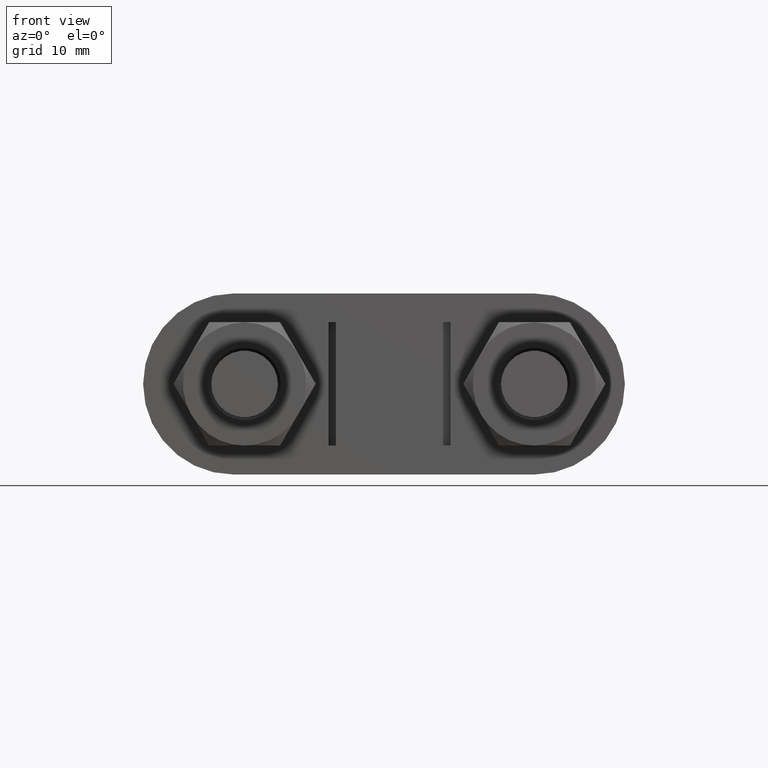
[diagram: clean part render]
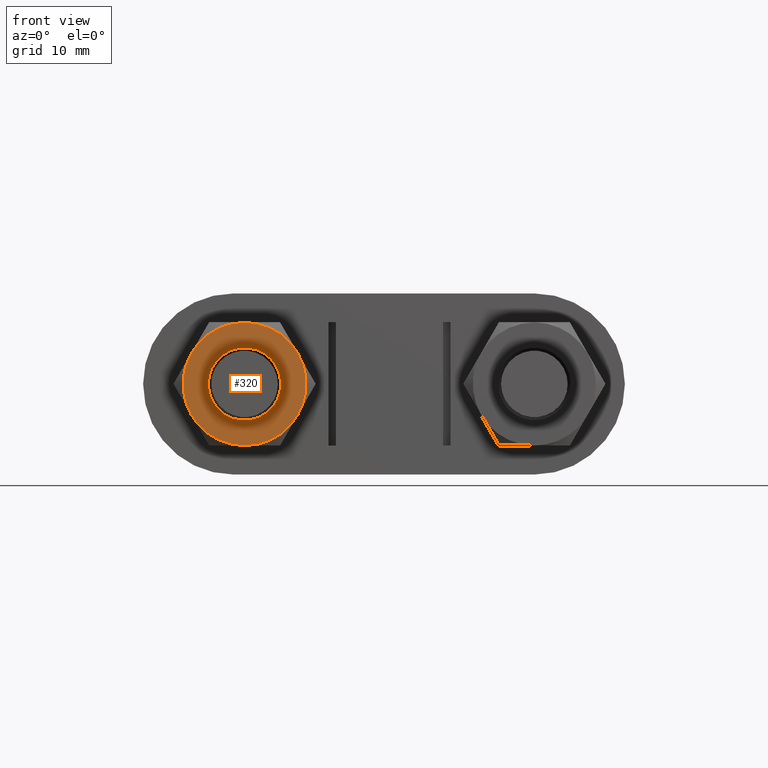
[diagram: same view with one face highlighted and labeled with its STEP entity id]
A machine part, front view. The second image highlights one B-rep face of the part: STEP entity #320.
In plain terms, the highlighted planar face has unit normal (0, 1, 0).
Its self-contained STEP definition (entity closure, byte-faithful):
#320 = ADVANCED_FACE( '', ( #490, #491 ), #492, .F. );
#490 = FACE_OUTER_BOUND( '', #1433, .T. );
#491 = FACE_BOUND( '', #1434, .T. );
#492 = PLANE( '', #1435 );
#1433 = EDGE_LOOP( '', ( #1938, #1939, #1940, #1941, #1942, #1943 ) );
#1434 = EDGE_LOOP( '', ( #1944 ) );
#1435 = AXIS2_PLACEMENT_3D( '', #1945, #1946, #1947 );
#1938 = ORIENTED_EDGE( '', *, *, #2389, .F. );
#1939 = ORIENTED_EDGE( '', *, *, #2390, .F. );
#1940 = ORIENTED_EDGE( '', *, *, #2391, .F. );
#1941 = ORIENTED_EDGE( '', *, *, #2392, .F. );
#1942 = ORIENTED_EDGE( '', *, *, #2387, .F. );
#1943 = ORIENTED_EDGE( '', *, *, #2393, .F. );
#1944 = ORIENTED_EDGE( '', *, *, #2394, .T. );
#1945 = CARTESIAN_POINT( '', ( -20.0000000000000, 18.0000000000037, 1.10214571844036E-015 ) );
#1946 = DIRECTION( '', ( 4.89842541528951E-016, 1.00000000000000, 6.12303176911189E-017 ) );
#1947 = DIRECTION( '', ( -0.866025409447909, 4.54831245837540E-016, -0.499999990190582 ) );
#2387 = EDGE_CURVE( '', #2676, #2678, #2679, .T. );
#2389 = EDGE_CURVE( '', #2681, #2682, #2683, .T. );
#2390 = EDGE_CURVE( '', #2684, #2681, #2685, .T. );
#2391 = EDGE_CURVE( '', #2686, #2684, #2687, .T. );
#2392 = EDGE_CURVE( '', #2678, #2686, #2688, .T. );
#2393 = EDGE_CURVE( '', #2682, #2676, #2689, .T. );
#2394 = EDGE_CURVE( '', #2690, #2690, #2691, .T. );
#2676 = VERTEX_POINT( '', #3274 );
#2678 = VERTEX_POINT( '', #3281 );
#2679 = CIRCLE( '', #3282, 8.50000000000000 );
#2681 = VERTEX_POINT( '', #3291 );
#2682 = VERTEX_POINT( '', #3292 );
#2683 = CIRCLE( '', #3293, 8.50000000000000 );
#2684 = VERTEX_POINT( '', #3294 );
#2685 = CIRCLE( '', #3295, 8.50000000000000 );
#2686 = VERTEX_POINT( '', #3296 );
#2687 = CIRCLE( '', #3297, 8.50000000000000 );
#2688 = CIRCLE( '', #3298, 8.50000000000000 );
#2689 = CIRCLE( '', #3299, 8.50000000000000 );
#2690 = VERTEX_POINT( '', #3300 );
#2691 = CIRCLE( '', #3301, 5.00000000000000 );
#3274 = CARTESIAN_POINT( '', ( -12.6387840196928, 18.0000000000037, 4.24999991661995 ) );
#3281 = CARTESIAN_POINT( '', ( -12.6387841159735, 18.0000000000037, -4.25000008337711 ) );
#3282 = AXIS2_PLACEMENT_3D( '', #3756, #3757, #3758 );
#3291 = CARTESIAN_POINT( '', ( -27.3612158840265, 18.0000000000037, 4.25000008337711 ) );
#3292 = CARTESIAN_POINT( '', ( -19.9999999037193, 18.0000000000037, 8.49999999999706 ) );
#3293 = AXIS2_PLACEMENT_3D( '', #3759, #3760, #3761 );
#3294 = CARTESIAN_POINT( '', ( -27.3612159803072, 18.0000000000037, -4.24999991661994 ) );
#3295 = AXIS2_PLACEMENT_3D( '', #3762, #3763, #3764 );
#3296 = CARTESIAN_POINT( '', ( -20.0000000962807, 18.0000000000037, -8.49999999999705 ) );
#3297 = AXIS2_PLACEMENT_3D( '', #3765, #3766, #3767 );
#3298 = AXIS2_PLACEMENT_3D( '', #3768, #3769, #3770 );
#3299 = AXIS2_PLACEMENT_3D( '', #3771, #3772, #3773 );
#3300 = CARTESIAN_POINT( '', ( -24.3301270472395, 18.0000000000037, -2.49999995095291 ) );
#3301 = AXIS2_PLACEMENT_3D( '', #3774, #3775, #3776 );
#3756 = CARTESIAN_POINT( '', ( -20.0000000000000, 18.0000000000037, 1.10214571844036E-015 ) );
#3757 = DIRECTION( '', ( 4.89842541528951E-016, 1.00000000000000, 6.12303176911189E-017 ) );
#3758 = DIRECTION( '', ( -0.866025409447909, 4.54831245837540E-016, -0.499999990190582 ) );
#3759 = CARTESIAN_POINT( '', ( -20.0000000000000, 18.0000000000037, 1.10214571844036E-015 ) );
#3760 = DIRECTION( '', ( 4.89842541528951E-016, 1.00000000000000, 6.12303176911189E-017 ) );
#3761 = DIRECTION( '', ( -0.866025409447909, 4.54831245837540E-016, -0.499999990190582 ) );
#3762 = CARTESIAN_POINT( '', ( -20.0000000000000, 18.0000000000037, 1.10214571844036E-015 ) );
#3763 = DIRECTION( '', ( 4.89842541528951E-016, 1.00000000000000, 6.12303176911189E-017 ) );
#3764 = DIRECTION( '', ( -0.866025409447909, 4.54831245837540E-016, -0.499999990190582 ) );
#3765 = CARTESIAN_POINT( '', ( -20.0000000000000, 18.0000000000037, 1.10214571844036E-015 ) );
#3766 = DIRECTION( '', ( 4.89842541528951E-016, 1.00000000000000, 6.12303176911189E-017 ) );
#3767 = DIRECTION( '', ( -0.866025409447909, 4.54831245837540E-016, -0.499999990190582 ) );
#3768 = CARTESIAN_POINT( '', ( -20.0000000000000, 18.0000000000037, 1.10214571844036E-015 ) );
#3769 = DIRECTION( '', ( 4.89842541528951E-016, 1.00000000000000, 6.12303176911189E-017 ) );
#3770 = DIRECTION( '', ( -0.866025409447909, 4.54831245837540E-016, -0.499999990190582 ) );
#3771 = CARTESIAN_POINT( '', ( -20.0000000000000, 18.0000000000037, 1.10214571844036E-015 ) );
#3772 = DIRECTION( '', ( 4.89842541528951E-016, 1.00000000000000, 6.12303176911189E-017 ) );
#3773 = DIRECTION( '', ( -0.866025409447909, 4.54831245837540E-016, -0.499999990190582 ) );
#3774 = CARTESIAN_POINT( '', ( -20.0000000000000, 18.0000000000037, 1.10214571844036E-015 ) );
#3775 = DIRECTION( '', ( 4.89842541528951E-016, 1.00000000000000, 6.12303176911189E-017 ) );
#3776 = DIRECTION( '', ( -0.866025409447909, 4.54831245837540E-016, -0.499999990190582 ) );